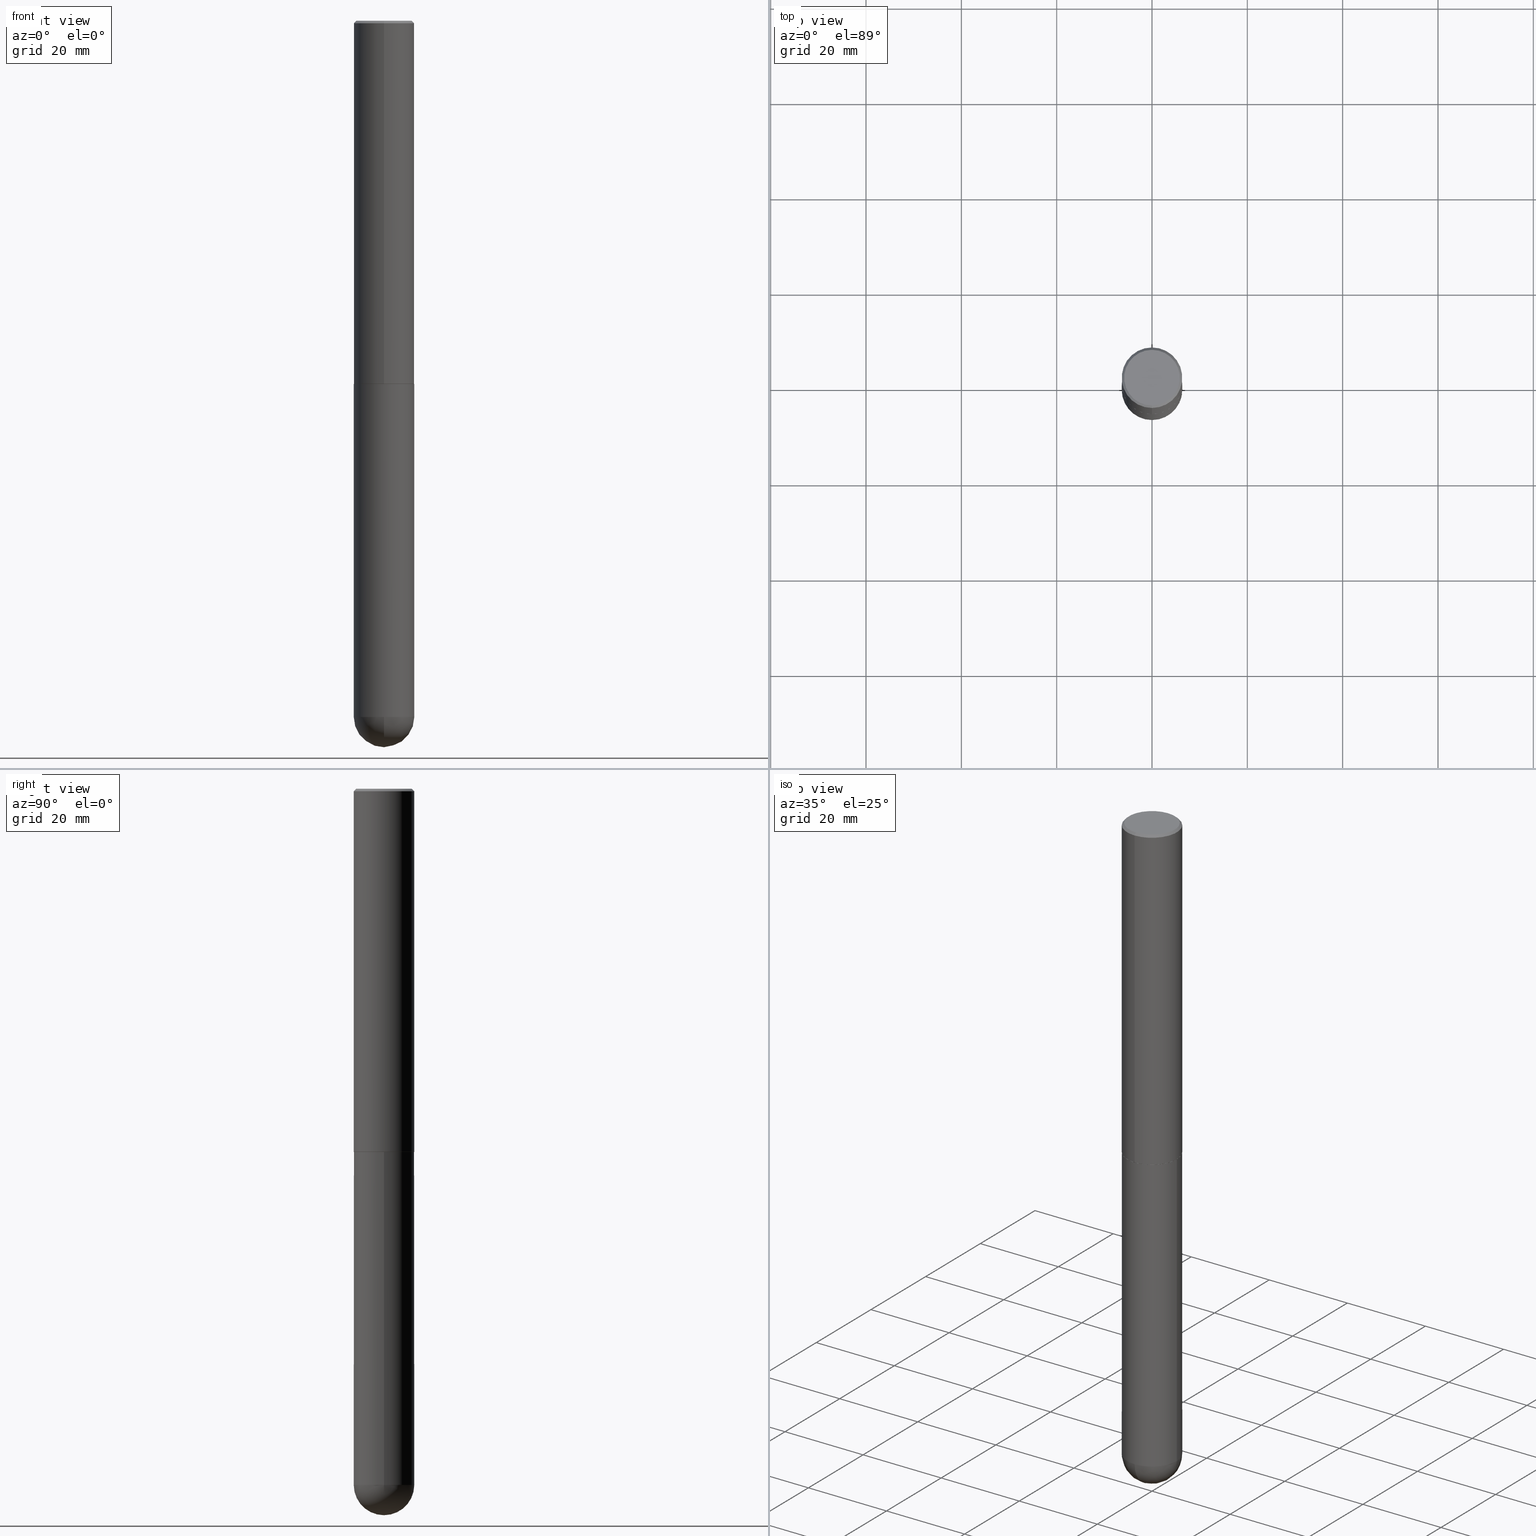
[diagram: canonical four-view strip — front | top / right | iso, engineering-drawing reading convention]
A machine part, canonical four-view strip (front | top / right | iso — engineering-drawing reading convention). The complete STEP part file that produces these views, byte-faithful:
ISO-10303-21;
HEADER;
FILE_DESCRIPTION (( 'STEP AP203' ),
    '1' );
FILE_NAME ('33132.STEP',
    '2024-02-21T17:54:42',
    ( '' ),
    ( '' ),
    'SwSTEP 2.0',
    'SolidWorks 2023',
    '' );
FILE_SCHEMA (( 'CONFIG_CONTROL_DESIGN' ));
ENDSEC;

DATA;
#1 = ORIENTED_EDGE ( 'NONE', *, *, #58, .F. ) ;
#2 = AXIS2_PLACEMENT_3D ( 'NONE', #291, #148, #118 ) ;
#3 = COORDINATED_UNIVERSAL_TIME_OFFSET ( 5, 0, .BEHIND. ) ;
#4 = CARTESIAN_POINT ( 'NONE',  ( -0.2500000000000000000, 1.776356839400250465E-15, -1.229733772563726445E-29 ) ) ;
#5 = ADVANCED_FACE ( 'NONE', ( #50 ), #303, .T. ) ;
#6 = CARTESIAN_POINT ( 'NONE',  ( 1.745740669421639647E-15, 0.2499999999999895084, -3.000000000000000888 ) ) ;
#7 = ORIENTED_EDGE ( 'NONE', *, *, #243, .T. ) ;
#8 = DIRECTION ( 'NONE',  ( -1.000000000000000000, 7.105427357601001070E-15, -4.926315508542082329E-29 ) ) ;
#9 = VERTEX_POINT ( 'NONE', #362 ) ;
#10 = CARTESIAN_POINT ( 'NONE',  ( 1.373032585765065255E-28, -2.055020006648814124E-14, -5.750000000000000888 ) ) ;
#11 = DIRECTION ( 'NONE',  ( -6.982962677686265922E-15, -1.000000000000000000, 4.370956789862815627E-15 ) ) ;
#12 = ORIENTED_EDGE ( 'NONE', *, *, #248, .T. ) ;
#13 = PERSON_AND_ORGANIZATION_ROLE ( 'design_owner' ) ;
#14 = VECTOR ( 'NONE', #140, 39.37007874015748143 ) ;
#15 = DIRECTION ( 'NONE',  ( 1.000000000000000000, -6.982962677686262766E-15, 0.000000000000000000 ) ) ;
#16 = DIRECTION ( 'NONE',  ( -2.445046103182867255E-29, 3.492086673601156067E-15, 1.000000000000000000 ) ) ;
#17 = VERTEX_POINT ( 'NONE', #394 ) ;
#18 = APPLICATION_CONTEXT ( 'configuration controlled 3d designs of mechanical parts and assemblies' ) ;
#19 = EDGE_CURVE ( 'NONE', #382, #69, #173, .T. ) ;
#20 = AXIS2_PLACEMENT_3D ( 'NONE', #381, #39, #224 ) ;
#21 = FACE_OUTER_BOUND ( 'NONE', #308, .T. ) ;
#22 = CC_DESIGN_APPROVAL ( #212, ( #276 ) ) ;
#23 = CARTESIAN_POINT ( 'NONE',  ( -1.738757706743806905E-15, -0.2490000000000104907, -2.999999999999999112 ) ) ;
#24 = SPHERICAL_SURFACE ( 'NONE', #60, 0.2500000000000006661 ) ;
#25 = EDGE_CURVE ( 'NONE', #73, #35, #124, .T. ) ;
#26 = VECTOR ( 'NONE', #48, 39.37007874015748143 ) ;
#27 =( GEOMETRIC_REPRESENTATION_CONTEXT ( 3 ) GLOBAL_UNCERTAINTY_ASSIGNED_CONTEXT ( ( #95 ) ) GLOBAL_UNIT_ASSIGNED_CONTEXT ( ( #46, #361, #217 ) ) REPRESENTATION_CONTEXT ( 'NONE', 'WORKASPACE' ) );
#28 = CARTESIAN_POINT ( 'NONE',  ( 4.890092206365748558E-31, -6.984173347202331460E-17, -0.02000000000000005593 ) ) ;
#29 = DATE_AND_TIME ( #335, #202 ) ;
#30 = CARTESIAN_POINT ( 'NONE',  ( 0.000000000000000000, 0.000000000000000000, 0.000000000000000000 ) ) ;
#31 = EDGE_CURVE ( 'NONE', #228, #195, #86, .T. ) ;
#32 = CLOSED_SHELL ( 'NONE', ( #376, #110, #313, #5, #149, #192, #223, #199 ) ) ;
#33 = AXIS2_PLACEMENT_3D ( 'NONE', #164, #8, #133 ) ;
#34 = ORIENTED_EDGE ( 'NONE', *, *, #257, .F. ) ;
#35 = VERTEX_POINT ( 'NONE', #400 ) ;
#36 = CIRCLE ( 'NONE', #219, 0.2500000000000000000 ) ;
#37 = CARTESIAN_POINT ( 'NONE',  ( 2.953248465557020919E-44, -4.217916217195114840E-30, -1.207849807704073908E-15 ) ) ;
#38 = ORIENTED_EDGE ( 'NONE', *, *, #301, .F. ) ;
#39 = DIRECTION ( 'NONE',  ( 2.445046103182866975E-29, -3.492086673601156067E-15, -1.000000000000000000 ) ) ;
#40 = ORIENTED_EDGE ( 'NONE', *, *, #331, .T. ) ;
#41 = DIRECTION ( 'NONE',  ( 6.982962677686266711E-15, 1.000000000000000000, 0.000000000000000000 ) ) ;
#42 = ORIENTED_EDGE ( 'NONE', *, *, #243, .F. ) ;
#43 = EDGE_CURVE ( 'NONE', #184, #383, #359, .T. ) ;
#44 = CIRCLE ( 'NONE', #49, 0.2489999999999999991 ) ;
#45 = FACE_OUTER_BOUND ( 'NONE', #99, .T. ) ;
#46 =( CONVERSION_BASED_UNIT ( 'INCH', #138 ) LENGTH_UNIT ( ) NAMED_UNIT ( #384 ) );
#47 = ORIENTED_EDGE ( 'NONE', *, *, #31, .T. ) ;
#48 = DIRECTION ( 'NONE',  ( -2.445468806185136877E-29, 3.491481338843145188E-15, 1.000000000000000000 ) ) ;
#49 = AXIS2_PLACEMENT_3D ( 'NONE', #393, #198, #306 ) ;
#50 = FACE_OUTER_BOUND ( 'NONE', #318, .T. ) ;
#51 = DIRECTION ( 'NONE',  ( -2.445046103182867255E-29, 3.492086673601156067E-15, 1.000000000000000000 ) ) ;
#52 = CALENDAR_DATE ( 2024, 21, 2 ) ;
#53 = DIRECTION ( 'NONE',  ( -4.937700262165896205E-15, -0.7071067811867381980, 0.7071067811863568364 ) ) ;
#54 = PERSON_AND_ORGANIZATION ( #320, #105 ) ;
#55 = CIRCLE ( 'NONE', #229, 0.2499999999999999167 ) ;
#56 = DIRECTION ( 'NONE',  ( -2.445046103182867255E-29, 3.492086673601156067E-15, 1.000000000000000000 ) ) ;
#57 = APPROVAL_STATUS ( 'not_yet_approved' ) ;
#58 = EDGE_CURVE ( 'NONE', #200, #228, #83, .T. ) ;
#59 = ORIENTED_EDGE ( 'NONE', *, *, #154, .T. ) ;
#60 = AXIS2_PLACEMENT_3D ( 'NONE', #372, #215, #404 ) ;
#61 = ORIENTED_EDGE ( 'NONE', *, *, #292, .T. ) ;
#62 = CC_DESIGN_DATE_AND_TIME_ASSIGNMENT ( #29, #375, ( #276 ) ) ;
#63 = DIRECTION ( 'NONE',  ( -1.000000000000000000, 6.982962677686265922E-15, -4.883557194083112340E-29 ) ) ;
#64 = DIRECTION ( 'NONE',  ( -2.445046103182866975E-29, 3.492086673601156067E-15, 1.000000000000000000 ) ) ;
#65 = ORIENTED_EDGE ( 'NONE', *, *, #43, .T. ) ;
#66 = DIRECTION ( 'NONE',  ( 1.000000000000000000, -6.982962677686265922E-15, 4.883557194083112340E-29 ) ) ;
#67 = FACE_OUTER_BOUND ( 'NONE', #346, .T. ) ;
#68 = PRODUCT_DEFINITION_SHAPE ( 'NONE', 'NONE',  #276 ) ;
#69 = VERTEX_POINT ( 'NONE', #364 ) ;
#70 = AXIS2_PLACEMENT_3D ( 'NONE', #304, #227, #310 ) ;
#71 = DATE_AND_TIME ( #385, #114 ) ;
#72 = CC_DESIGN_APPROVAL ( #317, ( #409 ) ) ;
#73 = VERTEX_POINT ( 'NONE', #326 ) ;
#74 = APPROVAL_DATE_TIME ( #392, #265 ) ;
#75 = ORIENTED_EDGE ( 'NONE', *, *, #248, .F. ) ;
#76 = PERSON_AND_ORGANIZATION ( #320, #105 ) ;
#77 = DIRECTION ( 'NONE',  ( -2.445468806185136597E-29, 3.491481338843145583E-15, 1.000000000000000000 ) ) ;
#78 = DIRECTION ( 'NONE',  ( -2.445046103182867255E-29, 3.492086673601156067E-15, 1.000000000000000000 ) ) ;
#79 = SPHERICAL_SURFACE ( 'NONE', #322, 0.2500000000000006661 ) ;
#80 = EDGE_CURVE ( 'NONE', #195, #228, #287, .T. ) ;
#81 = CARTESIAN_POINT ( 'NONE',  ( 1.745740669421707884E-15, 0.2499999999999800160, -5.750000000000001776 ) ) ;
#82 = CARTESIAN_POINT ( 'NONE',  ( 4.890092206365748558E-31, -6.984173347202331460E-17, -0.02000000000000005593 ) ) ;
#83 = LINE ( 'NONE', #205, #26 ) ;
#84 = DIRECTION ( 'NONE',  ( 6.982962677686265922E-15, 1.000000000000000000, -3.500180241882338444E-15 ) ) ;
#85 = VECTOR ( 'NONE', #146, 39.37007874015748143 ) ;
#86 = CIRCLE ( 'NONE', #145, 0.2500000000000000000 ) ;
#87 = CYLINDRICAL_SURFACE ( 'NONE', #187, 0.2500000000000001110 ) ;
#88 = CARTESIAN_POINT ( 'NONE',  ( -1.738757706743806905E-15, -0.2490000000000104907, -2.999999999999999112 ) ) ;
#89 = VERTEX_POINT ( 'NONE', #366 ) ;
#90 = DATE_AND_TIME ( #371, #374 ) ;
#91 = PRODUCT_RELATED_PRODUCT_CATEGORY ( 'detail', '', ( #193 ) ) ;
#92 = DIRECTION ( 'NONE',  ( -2.445046103182867255E-29, 3.492086673601156067E-15, 1.000000000000000000 ) ) ;
#93 = ORIENTED_EDGE ( 'NONE', *, *, #58, .T. ) ;
#94 = AXIS2_PLACEMENT_3D ( 'NONE', #37, #246, #283 ) ;
#95 = UNCERTAINTY_MEASURE_WITH_UNIT (LENGTH_MEASURE( 1.000000000000000082E-05 ), #46, 'distance_accuracy_value', 'NONE');
#96 = CARTESIAN_POINT ( 'NONE',  ( 0.2500000000000000000, -1.702097152686033033E-14, -5.750000000000000888 ) ) ;
#97 = ORIENTED_EDGE ( 'NONE', *, *, #261, .F. ) ;
#98 = FACE_OUTER_BOUND ( 'NONE', #341, .T. ) ;
#99 = EDGE_LOOP ( 'NONE', ( #222, #247, #188, #34 ) ) ;
#100 = DIRECTION ( 'NONE',  ( 6.982962677686265922E-15, 1.000000000000000000, -4.370956789862809317E-15 ) ) ;
#101 = PLANE ( 'NONE',  #20 ) ;
#102 = ORIENTED_EDGE ( 'NONE', *, *, #412, .T. ) ;
#103 = EDGE_CURVE ( 'NONE', #17, #69, #373, .T. ) ;
#104 = CONICAL_SURFACE ( 'NONE', #240, 0.2489999999999999991, 0.7853981633977213939 ) ;
#105 = ORGANIZATION ( 'UNSPECIFIED', 'UNSPECIFIED', '' ) ;
#106 = DIRECTION ( 'NONE',  ( -2.445046103182867255E-29, 3.492086673601156067E-15, 1.000000000000000000 ) ) ;
#107 = ORIENTED_EDGE ( 'NONE', *, *, #125, .T. ) ;
#108 = CARTESIAN_POINT ( 'NONE',  ( 1.745740669421566480E-15, 0.2499999999999998612, -0.02000000000000093023 ) ) ;
#109 = DIRECTION ( 'NONE',  ( 6.982962677686265922E-15, 1.000000000000000000, -3.500180241882338444E-15 ) ) ;
#110 = ADVANCED_FACE ( 'NONE', ( #21 ), #87, .T. ) ;
#111 = DESIGN_CONTEXT ( 'detailed design', #396, 'design' ) ;
#112 = CARTESIAN_POINT ( 'NONE',  ( -0.2500000000000000000, -1.349887401803851318E-14, -3.000000000000000444 ) ) ;
#113 = AXIS2_PLACEMENT_3D ( 'NONE', #298, #234, #236 ) ;
#114 = LOCAL_TIME ( 12, 54, 42.00000000000000000, #3 ) ;
#115 = CARTESIAN_POINT ( 'NONE',  ( 1.769251412042722426E-15, 0.2489999999999895075, -3.000000000000001332 ) ) ;
#116 = DIRECTION ( 'NONE',  ( -6.982962677686266711E-15, -1.000000000000000000, 3.492086673601156067E-15 ) ) ;
#117 = DIRECTION ( 'NONE',  ( 2.445046103182867255E-29, -3.492086673601156067E-15, -1.000000000000000000 ) ) ;
#118 = DIRECTION ( 'NONE',  ( -6.982962677686266711E-15, -1.000000000000000000, 3.492086673601156067E-15 ) ) ;
#119 = DIRECTION ( 'NONE',  ( 1.000000000000000000, -6.982962677686262766E-15, 0.000000000000000000 ) ) ;
#120 = AXIS2_PLACEMENT_3D ( 'NONE', #28, #117, #84 ) ;
#121 = PERSON_AND_ORGANIZATION ( #320, #105 ) ;
#122 = EDGE_CURVE ( 'NONE', #200, #277, #299, .T. ) ;
#123 = PERSON_AND_ORGANIZATION_ROLE ( 'creator' ) ;
#124 = CIRCLE ( 'NONE', #311, 0.2499999999999999167 ) ;
#125 = EDGE_CURVE ( 'NONE', #277, #253, #367, .T. ) ;
#126 = ORIENTED_EDGE ( 'NONE', *, *, #331, .F. ) ;
#127 = ORIENTED_EDGE ( 'NONE', *, *, #103, .T. ) ;
#128 = CIRCLE ( 'NONE', #33, 0.2500000000000006661 ) ;
#129 = VECTOR ( 'NONE', #407, 39.37007874015748143 ) ;
#130 = ORIENTED_EDGE ( 'NONE', *, *, #25, .T. ) ;
#131 = APPROVAL_ROLE ( '' ) ;
#132 = DIRECTION ( 'NONE',  ( -6.982962677686265133E-15, -1.000000000000000000, 4.388510833195603583E-15 ) ) ;
#133 = DIRECTION ( 'NONE',  ( -7.105427357601001859E-15, -1.000000000000000000, 0.000000000000000000 ) ) ;
#134 = ORIENTED_EDGE ( 'NONE', *, *, #268, .F. ) ;
#135 = LINE ( 'NONE', #108, #379 ) ;
#136 = CARTESIAN_POINT ( 'NONE',  ( -1.715124499442881707E-15, -0.2500000000000000000, -0.01999999999999918163 ) ) ;
#137 = VERTEX_POINT ( 'NONE', #23 ) ;
#138 = LENGTH_MEASURE_WITH_UNIT ( LENGTH_MEASURE( 0.02539999999999999897 ), #411 );
#139 = AXIS2_PLACEMENT_3D ( 'NONE', #82, #235, #109 ) ;
#140 = DIRECTION ( 'NONE',  ( -2.445046103182867535E-29, 3.492086673601156067E-15, 1.000000000000000000 ) ) ;
#141 = ADVANCED_BREP_SHAPE_REPRESENTATION ( '33132', ( #363, #226, #151 ), #27 ) ;
#142 = CC_DESIGN_PERSON_AND_ORGANIZATION_ASSIGNMENT ( #213, #123, ( #276 ) ) ;
#143 = DIRECTION ( 'NONE',  ( -2.445468806185136597E-29, 3.491481338843145583E-15, 1.000000000000000000 ) ) ;
#144 = CARTESIAN_POINT ( 'NONE',  ( 7.336406418555409790E-29, -1.047444401652943635E-14, -3.000000000000000444 ) ) ;
#145 = AXIS2_PLACEMENT_3D ( 'NONE', #144, #262, #325 ) ;
#146 = DIRECTION ( 'NONE',  ( 5.024295867789434219E-15, 0.7071067811867430830, 0.7071067811863519514 ) ) ;
#147 = FACE_OUTER_BOUND ( 'NONE', #168, .T. ) ;
#148 = DIRECTION ( 'NONE',  ( -2.445046103182867255E-29, 3.492086673601156067E-15, 1.000000000000000000 ) ) ;
#149 = ADVANCED_FACE ( 'NONE', ( #210 ), #179, .T. ) ;
#150 = LINE ( 'NONE', #297, #256 ) ;
#151 = AXIS2_PLACEMENT_3D ( 'NONE', #30, #155, #274 ) ;
#152 = PERSON_AND_ORGANIZATION_ROLE ( 'classification_officer' ) ;
#153 = CYLINDRICAL_SURFACE ( 'NONE', #270, 0.2500000000000000000 ) ;
#154 = EDGE_CURVE ( 'NONE', #17, #35, #238, .T. ) ;
#155 = DIRECTION ( 'NONE',  ( 0.000000000000000000, 0.000000000000000000, 1.000000000000000000 ) ) ;
#156 = APPROVAL_DATE_TIME ( #71, #212 ) ;
#157 = ORIENTED_EDGE ( 'NONE', *, *, #365, .F. ) ;
#158 = ORIENTED_EDGE ( 'NONE', *, *, #261, .T. ) ;
#159 = COORDINATED_UNIVERSAL_TIME_OFFSET ( 5, 0, .BEHIND. ) ;
#160 = CARTESIAN_POINT ( 'NONE',  ( 1.675911042644707718E-15, 0.2300000000000011202, -2.011029742632343554E-15 ) ) ;
#161 = ORIENTED_EDGE ( 'NONE', *, *, #122, .F. ) ;
#162 = AXIS2_PLACEMENT_3D ( 'NONE', #386, #92, #11 ) ;
#163 = LOCAL_TIME ( 12, 54, 42.00000000000000000, #159 ) ;
#164 = CARTESIAN_POINT ( 'NONE',  ( 1.373032585765065255E-28, -2.055020006648814124E-14, -5.750000000000000888 ) ) ;
#165 = ORIENTED_EDGE ( 'NONE', *, *, #268, .T. ) ;
#166 = CARTESIAN_POINT ( 'NONE',  ( 7.335138309548600084E-29, -1.047626002080346859E-14, -2.999999999999999556 ) ) ;
#167 = ORIENTED_EDGE ( 'NONE', *, *, #103, .F. ) ;
#168 = EDGE_LOOP ( 'NONE', ( #267, #158, #40, #357 ) ) ;
#169 = CALENDAR_DATE ( 2024, 21, 2 ) ;
#170 = CC_DESIGN_PERSON_AND_ORGANIZATION_ASSIGNMENT ( #355, #13, ( #193 ) ) ;
#171 = CIRCLE ( 'NONE', #94, 0.2300000000000011202 ) ;
#172 = CARTESIAN_POINT ( 'NONE',  ( 7.335138309548602326E-29, -1.047626002080347017E-14, -3.000000000000000444 ) ) ;
#173 = LINE ( 'NONE', #115, #85 ) ;
#174 = CARTESIAN_POINT ( 'NONE',  ( 7.332693263445419070E-29, -1.047276793412986863E-14, -2.999000000000000554 ) ) ;
#175 = EDGE_CURVE ( 'NONE', #89, #200, #353, .T. ) ;
#176 = DIRECTION ( 'NONE',  ( -6.982962677686265922E-15, -1.000000000000000000, 3.500180241882338444E-15 ) ) ;
#177 = PERSON_AND_ORGANIZATION ( #320, #105 ) ;
#178 = DIRECTION ( 'NONE',  ( -2.445468806185136597E-29, 3.491481338843145583E-15, 1.000000000000000000 ) ) ;
#179 = CYLINDRICAL_SURFACE ( 'NONE', #2, 0.2500000000000001110 ) ;
#180 = DATE_TIME_ROLE ( 'classification_date' ) ;
#181 = SECURITY_CLASSIFICATION_LEVEL ( 'unclassified' ) ;
#182 = PERSON_AND_ORGANIZATION_ROLE ( 'creator' ) ;
#183 = FACE_OUTER_BOUND ( 'NONE', #231, .T. ) ;
#184 = VERTEX_POINT ( 'NONE', #323 ) ;
#185 = APPROVAL_ROLE ( '' ) ;
#186 = ORIENTED_EDGE ( 'NONE', *, *, #154, .F. ) ;
#187 = AXIS2_PLACEMENT_3D ( 'NONE', #264, #401, #116 ) ;
#188 = ORIENTED_EDGE ( 'NONE', *, *, #301, .T. ) ;
#189 = CARTESIAN_POINT ( 'NONE',  ( 1.772804125721524114E-15, 0.2489999999999895075, -3.000000000000001332 ) ) ;
#190 = PLANE ( 'NONE',  #408 ) ;
#191 = EDGE_LOOP ( 'NONE', ( #387, #391, #59, #348 ) ) ;
#192 = ADVANCED_FACE ( 'NONE', ( #45 ), #239, .T. ) ;
#193 = PRODUCT ( '33132', '33132', '', ( #344 ) ) ;
#194 = CYLINDRICAL_SURFACE ( 'NONE', #70, 0.2500000000000000000 ) ;
#195 = VERTEX_POINT ( 'NONE', #112 ) ;
#196 = AXIS2_PLACEMENT_3D ( 'NONE', #172, #16, #260 ) ;
#197 = ORIENTED_EDGE ( 'NONE', *, *, #405, .T. ) ;
#198 = DIRECTION ( 'NONE',  ( -2.445046103182867255E-29, 3.492086673601156067E-15, 1.000000000000000000 ) ) ;
#199 = ADVANCED_FACE ( 'NONE', ( #360 ), #101, .F. ) ;
#200 = VERTEX_POINT ( 'NONE', #96 ) ;
#201 = DIRECTION ( 'NONE',  ( -6.982962677686265922E-15, -1.000000000000000000, 3.492086673601156067E-15 ) ) ;
#202 = LOCAL_TIME ( 12, 54, 42.00000000000000000, #244 ) ;
#203 = CARTESIAN_POINT ( 'NONE',  ( 7.336406418555409790E-29, -1.047444401652943635E-14, -3.000000000000000444 ) ) ;
#204 = DIRECTION ( 'NONE',  ( -2.445046103182867255E-29, 3.492086673601156067E-15, 1.000000000000000000 ) ) ;
#205 = CARTESIAN_POINT ( 'NONE',  ( 0.2500000000000000000, -1.745740669421566678E-15, 1.219044193948983948E-29 ) ) ;
#206 = CARTESIAN_POINT ( 'NONE',  ( 1.406144563556453767E-28, -2.007601769834809252E-14, -5.750000000000000888 ) ) ;
#207 = PERSON_AND_ORGANIZATION_ROLE ( 'design_supplier' ) ;
#208 = AXIS2_PLACEMENT_3D ( 'NONE', #398, #204, #132 ) ;
#209 = CARTESIAN_POINT ( 'NONE',  ( 4.890092206365748558E-31, -6.984173347202331460E-17, -0.02000000000000005593 ) ) ;
#210 = FACE_OUTER_BOUND ( 'NONE', #191, .T. ) ;
#211 = COORDINATED_UNIVERSAL_TIME_OFFSET ( 5, 0, .BEHIND. ) ;
#212 = APPROVAL ( #321, 'UNSPECIFIED' ) ;
#213 = PERSON_AND_ORGANIZATION ( #320, #105 ) ;
#214 = PERSON_AND_ORGANIZATION ( #320, #105 ) ;
#215 = DIRECTION ( 'NONE',  ( -1.000000000000000000, 6.982962677686265922E-15, -4.883557194083112340E-29 ) ) ;
#216 = CIRCLE ( 'NONE', #380, 0.2500000000000006661 ) ;
#217 =( NAMED_UNIT ( * ) SI_UNIT ( $, .STERADIAN. ) SOLID_ANGLE_UNIT ( ) );
#218 = ADVANCED_FACE ( 'NONE', ( #221 ), #190, .F. ) ;
#219 = AXIS2_PLACEMENT_3D ( 'NONE', #340, #269, #119 ) ;
#220 = EDGE_LOOP ( 'NONE', ( #7, #65 ) ) ;
#221 = FACE_OUTER_BOUND ( 'NONE', #315, .T. ) ;
#222 = ORIENTED_EDGE ( 'NONE', *, *, #19, .F. ) ;
#223 = ADVANCED_FACE ( 'NONE', ( #98 ), #314, .F. ) ;
#224 = DIRECTION ( 'NONE',  ( 6.982962677686265922E-15, 1.000000000000000000, -3.492086673601156067E-15 ) ) ;
#225 = ORIENTED_EDGE ( 'NONE', *, *, #370, .T. ) ;
#226 = MANIFOLD_SOLID_BREP ( 'Body-Move/Copy2[2]', #32 ) ;
#227 = DIRECTION ( 'NONE',  ( -2.445468806185136597E-29, 3.491481338843145583E-15, 1.000000000000000000 ) ) ;
#228 = VERTEX_POINT ( 'NONE', #349 ) ;
#229 = AXIS2_PLACEMENT_3D ( 'NONE', #209, #56, #300 ) ;
#230 = DIRECTION ( 'NONE',  ( -6.982962677686265133E-15, -1.000000000000000000, 4.388510833195603583E-15 ) ) ;
#231 = EDGE_LOOP ( 'NONE', ( #302, #12, #255, #288 ) ) ;
#232 = CARTESIAN_POINT ( 'NONE',  ( 1.406144563556453767E-28, -2.007601769834809252E-14, -5.750000000000000888 ) ) ;
#233 = DIRECTION ( 'NONE',  ( -4.851104656540957964E-15, -0.7071067811865491270, -0.7071067811865459074 ) ) ;
#234 = DIRECTION ( 'NONE',  ( -2.445468806185136597E-29, 3.491481338843145583E-15, 1.000000000000000000 ) ) ;
#235 = DIRECTION ( 'NONE',  ( 2.445046103182867255E-29, -3.492086673601156067E-15, -1.000000000000000000 ) ) ;
#236 = DIRECTION ( 'NONE',  ( 1.000000000000000000, -6.982962677686262766E-15, 0.000000000000000000 ) ) ;
#237 = CC_DESIGN_DATE_AND_TIME_ASSIGNMENT ( #90, #180, ( #345 ) ) ;
#238 = LINE ( 'NONE', #332, #14 ) ;
#239 = CONICAL_SURFACE ( 'NONE', #196, 0.2489999999999999991, 0.7853981633977213939 ) ;
#240 = AXIS2_PLACEMENT_3D ( 'NONE', #252, #106, #230 ) ;
#241 = ADVANCED_FACE ( 'NONE', ( #67 ), #194, .T. ) ;
#242 = AXIS2_PLACEMENT_3D ( 'NONE', #203, #259, #324 ) ;
#243 = EDGE_CURVE ( 'NONE', #383, #184, #171, .T. ) ;
#244 = COORDINATED_UNIVERSAL_TIME_OFFSET ( 5, 0, .BEHIND. ) ;
#245 = APPLICATION_PROTOCOL_DEFINITION ( 'international standard', 'config_control_design', 1994, #18 ) ;
#246 = DIRECTION ( 'NONE',  ( -2.445046103182867255E-29, 3.492086673601156067E-15, 1.000000000000000000 ) ) ;
#247 = ORIENTED_EDGE ( 'NONE', *, *, #365, .T. ) ;
#248 = EDGE_CURVE ( 'NONE', #9, #89, #128, .T. ) ;
#249 = AXIS2_PLACEMENT_3D ( 'NONE', #174, #51, #294 ) ;
#250 = APPROVAL_PERSON_ORGANIZATION ( #76, #212, #279 ) ;
#251 = ORIENTED_EDGE ( 'NONE', *, *, #175, .F. ) ;
#252 = CARTESIAN_POINT ( 'NONE',  ( 7.335138309548602326E-29, -1.047626002080347017E-14, -3.000000000000000444 ) ) ;
#253 = VERTEX_POINT ( 'NONE', #377 ) ;
#254 = ORIENTED_EDGE ( 'NONE', *, *, #342, .T. ) ;
#255 = ORIENTED_EDGE ( 'NONE', *, *, #342, .F. ) ;
#256 = VECTOR ( 'NONE', #266, 39.37007874015748143 ) ;
#257 = EDGE_CURVE ( 'NONE', #69, #17, #275, .T. ) ;
#258 = APPLICATION_PROTOCOL_DEFINITION ( 'international standard', 'config_control_design', 1994, #396 ) ;
#259 = DIRECTION ( 'NONE',  ( -2.445468806185136597E-29, 3.491481338843145583E-15, 1.000000000000000000 ) ) ;
#260 = DIRECTION ( 'NONE',  ( -6.982962677686265133E-15, -1.000000000000000000, 4.388510833195603583E-15 ) ) ;
#261 = EDGE_CURVE ( 'NONE', #184, #35, #352, .T. ) ;
#262 = DIRECTION ( 'NONE',  ( -2.445468806185136597E-29, 3.491481338843145583E-15, 1.000000000000000000 ) ) ;
#263 = CONICAL_SURFACE ( 'NONE', #120, 0.2499999999999999167, 0.7853981633974471688 ) ;
#264 = CARTESIAN_POINT ( 'NONE',  ( 0.000000000000000000, 0.000000000000000000, 0.000000000000000000 ) ) ;
#265 = APPROVAL ( #289, 'UNSPECIFIED' ) ;
#266 = DIRECTION ( 'NONE',  ( -2.445046103182867535E-29, 3.492086673601156067E-15, 1.000000000000000000 ) ) ;
#267 = ORIENTED_EDGE ( 'NONE', *, *, #43, .F. ) ;
#268 = EDGE_CURVE ( 'NONE', #137, #382, #295, .T. ) ;
#269 = DIRECTION ( 'NONE',  ( -2.445468806185136597E-29, 3.491481338843145583E-15, 1.000000000000000000 ) ) ;
#270 = AXIS2_PLACEMENT_3D ( 'NONE', #273, #178, #406 ) ;
#271 = CC_DESIGN_PERSON_AND_ORGANIZATION_ASSIGNMENT ( #54, #182, ( #409 ) ) ;
#272 = LINE ( 'NONE', #88, #328 ) ;
#273 = CARTESIAN_POINT ( 'NONE',  ( 0.000000000000000000, 0.000000000000000000, 0.000000000000000000 ) ) ;
#274 = DIRECTION ( 'NONE',  ( 1.000000000000000000, 0.000000000000000000, 0.000000000000000000 ) ) ;
#275 = CIRCLE ( 'NONE', #162, 0.2500000000000003331 ) ;
#276 = PRODUCT_DEFINITION ( 'UNKNOWN', '', #409, #111 ) ;
#277 = VERTEX_POINT ( 'NONE', #81 ) ;
#278 = DATE_AND_TIME ( #52, #163 ) ;
#279 = APPROVAL_ROLE ( '' ) ;
#280 = LINE ( 'NONE', #4, #129 ) ;
#281 = ORIENTED_EDGE ( 'NONE', *, *, #412, .F. ) ;
#282 = DIRECTION ( 'NONE',  ( 4.937700262164541731E-15, 0.7071067811865442421, -0.7071067811865507924 ) ) ;
#283 = DIRECTION ( 'NONE',  ( -6.982962677686265922E-15, -1.000000000000000000, 3.492086673601156067E-15 ) ) ;
#284 = EDGE_LOOP ( 'NONE', ( #107, #102, #336, #1, #354 ) ) ;
#285 = ORIENTED_EDGE ( 'NONE', *, *, #80, .T. ) ;
#286 = ADVANCED_FACE ( 'NONE', ( #333 ), #24, .T. ) ;
#287 = CIRCLE ( 'NONE', #242, 0.2500000000000000000 ) ;
#288 = ORIENTED_EDGE ( 'NONE', *, *, #125, .F. ) ;
#289 = APPROVAL_STATUS ( 'not_yet_approved' ) ;
#290 = AXIS2_PLACEMENT_3D ( 'NONE', #206, #143, #15 ) ;
#291 = CARTESIAN_POINT ( 'NONE',  ( 0.000000000000000000, 0.000000000000000000, 0.000000000000000000 ) ) ;
#292 = EDGE_CURVE ( 'NONE', #69, #73, #150, .T. ) ;
#293 = DIRECTION ( 'NONE',  ( -2.445046103182867255E-29, 3.492086673601156067E-15, 1.000000000000000000 ) ) ;
#294 = DIRECTION ( 'NONE',  ( -6.982962677686265922E-15, -1.000000000000000000, 4.370956789862815627E-15 ) ) ;
#295 = CIRCLE ( 'NONE', #208, 0.2489999999999999991 ) ;
#296 = LOCAL_TIME ( 12, 54, 42.00000000000000000, #319 ) ;
#297 = CARTESIAN_POINT ( 'NONE',  ( 1.776356839400251254E-15, 0.2500000000000001110, -8.730216684002894111E-16 ) ) ;
#298 = CARTESIAN_POINT ( 'NONE',  ( 1.406144563556453767E-28, -2.007601769834809252E-14, -5.750000000000000888 ) ) ;
#299 = CIRCLE ( 'NONE', #290, 0.2500000000000000000 ) ;
#300 = DIRECTION ( 'NONE',  ( -6.982962677686265922E-15, -1.000000000000000000, 3.500180241882338444E-15 ) ) ;
#301 = EDGE_CURVE ( 'NONE', #137, #17, #272, .T. ) ;
#302 = ORIENTED_EDGE ( 'NONE', *, *, #405, .F. ) ;
#303 = CONICAL_SURFACE ( 'NONE', #139, 0.2499999999999999167, 0.7853981633974471688 ) ;
#304 = CARTESIAN_POINT ( 'NONE',  ( 0.000000000000000000, 0.000000000000000000, 0.000000000000000000 ) ) ;
#305 = EDGE_LOOP ( 'NONE', ( #165, #410, #167, #38 ) ) ;
#306 = DIRECTION ( 'NONE',  ( -6.982962677686265133E-15, -1.000000000000000000, 4.388510833195603583E-15 ) ) ;
#307 = DIRECTION ( 'NONE',  ( -6.982962677686265922E-15, -1.000000000000000000, 3.492086673601156067E-15 ) ) ;
#308 = EDGE_LOOP ( 'NONE', ( #127, #61, #126, #186 ) ) ;
#309 = SHAPE_DEFINITION_REPRESENTATION ( #68, #141 ) ;
#310 = DIRECTION ( 'NONE',  ( 1.000000000000000000, -6.982962677686266711E-15, 4.876176775795935793E-29 ) ) ;
#311 = AXIS2_PLACEMENT_3D ( 'NONE', #402, #293, #176 ) ;
#312 = ORIENTED_EDGE ( 'NONE', *, *, #175, .T. ) ;
#313 = ADVANCED_FACE ( 'NONE', ( #147 ), #263, .T. ) ;
#314 = PLANE ( 'NONE',  #403 ) ;
#315 = EDGE_LOOP ( 'NONE', ( #47, #285 ) ) ;
#316 = CARTESIAN_POINT ( 'NONE',  ( 1.373032585765065255E-28, -2.055020006648814124E-14, -5.750000000000000888 ) ) ;
#317 = APPROVAL ( #57, 'UNSPECIFIED' ) ;
#318 = EDGE_LOOP ( 'NONE', ( #97, #42, #225, #130 ) ) ;
#319 = COORDINATED_UNIVERSAL_TIME_OFFSET ( 5, 0, .BEHIND. ) ;
#320 = PERSON ( 'UNSPECIFIED', 'UNSPECIFIED', 'UNSPECIFIED', ('UNSPECIFIED'), ('UNSPECIFIED'), ('UNSPECIFIED') ) ;
#321 = APPROVAL_STATUS ( 'not_yet_approved' ) ;
#322 = AXIS2_PLACEMENT_3D ( 'NONE', #10, #63, #100 ) ;
#323 = CARTESIAN_POINT ( 'NONE',  ( -1.646519519465170912E-15, -0.2300000000000011202, -4.046698727758040146E-16 ) ) ;
#324 = DIRECTION ( 'NONE',  ( 1.000000000000000000, -6.982962677686262766E-15, 0.000000000000000000 ) ) ;
#325 = DIRECTION ( 'NONE',  ( 1.000000000000000000, -6.982962677686262766E-15, 0.000000000000000000 ) ) ;
#326 = CARTESIAN_POINT ( 'NONE',  ( 1.745740669421566480E-15, 0.2499999999999998612, -0.02000000000000093023 ) ) ;
#327 = CLOSED_SHELL ( 'NONE', ( #337, #351, #286, #218, #241 ) ) ;
#328 = VECTOR ( 'NONE', #53, 39.37007874015748143 ) ;
#329 = CC_DESIGN_SECURITY_CLASSIFICATION ( #345, ( #409 ) ) ;
#330 = FACE_OUTER_BOUND ( 'NONE', #284, .T. ) ;
#331 = EDGE_CURVE ( 'NONE', #35, #73, #55, .T. ) ;
#332 = CARTESIAN_POINT ( 'NONE',  ( -1.745740669421567467E-15, -0.2500000000000001110, 8.730216684002894111E-16 ) ) ;
#333 = FACE_OUTER_BOUND ( 'NONE', #378, .T. ) ;
#334 = APPROVAL_DATE_TIME ( #278, #317 ) ;
#335 = CALENDAR_DATE ( 2024, 21, 2 ) ;
#336 = ORIENTED_EDGE ( 'NONE', *, *, #31, .F. ) ;
#337 = ADVANCED_FACE ( 'NONE', ( #330 ), #153, .T. ) ;
#338 = AXIS2_PLACEMENT_3D ( 'NONE', #232, #77, #358 ) ;
#339 = APPROVAL_PERSON_ORGANIZATION ( #121, #317, #185 ) ;
#340 = CARTESIAN_POINT ( 'NONE',  ( 1.406144563556453767E-28, -2.007601769834809252E-14, -5.750000000000000888 ) ) ;
#341 = EDGE_LOOP ( 'NONE', ( #134, #157 ) ) ;
#342 = EDGE_CURVE ( 'NONE', #253, #89, #36, .T. ) ;
#343 = CC_DESIGN_APPROVAL ( #265, ( #345 ) ) ;
#344 = MECHANICAL_CONTEXT ( 'NONE', #18, 'mechanical' ) ;
#345 = SECURITY_CLASSIFICATION ( '', '', #181 ) ;
#346 = EDGE_LOOP ( 'NONE', ( #281, #254, #312, #93, #350 ) ) ;
#347 = DIRECTION ( 'NONE',  ( -1.000000000000000000, 6.982962677686265922E-15, -4.876176775795935793E-29 ) ) ;
#348 = ORIENTED_EDGE ( 'NONE', *, *, #25, .F. ) ;
#349 = CARTESIAN_POINT ( 'NONE',  ( 0.2500000000000000000, -1.222018468595100303E-14, -3.000000000000000444 ) ) ;
#350 = ORIENTED_EDGE ( 'NONE', *, *, #80, .F. ) ;
#351 = ADVANCED_FACE ( 'NONE', ( #183 ), #79, .T. ) ;
#352 = LINE ( 'NONE', #136, #399 ) ;
#353 = CIRCLE ( 'NONE', #338, 0.2500000000000000000 ) ;
#354 = ORIENTED_EDGE ( 'NONE', *, *, #122, .T. ) ;
#355 = PERSON_AND_ORGANIZATION ( #320, #105 ) ;
#356 = DIRECTION ( 'NONE',  ( 2.438088387897960049E-29, -3.491481338843145188E-15, -1.000000000000000000 ) ) ;
#357 = ORIENTED_EDGE ( 'NONE', *, *, #370, .F. ) ;
#358 = DIRECTION ( 'NONE',  ( 1.000000000000000000, -6.982962677686262766E-15, 0.000000000000000000 ) ) ;
#359 = CIRCLE ( 'NONE', #390, 0.2300000000000011202 ) ;
#360 = FACE_OUTER_BOUND ( 'NONE', #220, .T. ) ;
#361 =( NAMED_UNIT ( * ) PLANE_ANGLE_UNIT ( ) SI_UNIT ( $, .RADIAN. ) );
#362 = CARTESIAN_POINT ( 'NONE',  ( 1.435238263781167989E-28, -2.140776231620958900E-14, -6.000000000000001776 ) ) ;
#363 = MANIFOLD_SOLID_BREP ( 'Body-Move/Copy2[1]', #327 ) ;
#364 = CARTESIAN_POINT ( 'NONE',  ( 1.776356839400288724E-15, 0.2499999999999898415, -2.999000000000001442 ) ) ;
#365 = EDGE_CURVE ( 'NONE', #382, #137, #44, .T. ) ;
#366 = CARTESIAN_POINT ( 'NONE',  ( -1.776356839400113597E-15, -0.2500000000000206501, -5.750000000000000000 ) ) ;
#367 = CIRCLE ( 'NONE', #113, 0.2500000000000000000 ) ;
#368 = APPROVAL_PERSON_ORGANIZATION ( #214, #265, #131 ) ;
#369 = PERSON_AND_ORGANIZATION ( #320, #105 ) ;
#370 = EDGE_CURVE ( 'NONE', #383, #73, #135, .T. ) ;
#371 = CALENDAR_DATE ( 2024, 21, 2 ) ;
#372 = CARTESIAN_POINT ( 'NONE',  ( 1.373032585765065255E-28, -2.055020006648814124E-14, -5.750000000000000888 ) ) ;
#373 = CIRCLE ( 'NONE', #249, 0.2500000000000003331 ) ;
#374 = LOCAL_TIME ( 12, 54, 42.00000000000000000, #211 ) ;
#375 = DATE_TIME_ROLE ( 'creation_date' ) ;
#376 = ADVANCED_FACE ( 'NONE', ( #389 ), #104, .T. ) ;
#377 = CARTESIAN_POINT ( 'NONE',  ( -0.2500000000000000000, -1.349887401803851318E-14, -5.750000000000000888 ) ) ;
#378 = EDGE_LOOP ( 'NONE', ( #75, #197, #161, #251 ) ) ;
#379 = VECTOR ( 'NONE', #282, 39.37007874015748143 ) ;
#380 = AXIS2_PLACEMENT_3D ( 'NONE', #316, #66, #41 ) ;
#381 = CARTESIAN_POINT ( 'NONE',  ( 1.606081415867848956E-15, 0.2300000000000011202, -1.407104838780306896E-15 ) ) ;
#382 = VERTEX_POINT ( 'NONE', #189 ) ;
#383 = VERTEX_POINT ( 'NONE', #160 ) ;
#384 = DIMENSIONAL_EXPONENTS ( 1.000000000000000000, 0.000000000000000000, 0.000000000000000000, 0.000000000000000000, 0.000000000000000000, 0.000000000000000000, 0.000000000000000000 ) ;
#385 = CALENDAR_DATE ( 2024, 21, 2 ) ;
#386 = CARTESIAN_POINT ( 'NONE',  ( 7.332693263445419070E-29, -1.047276793412986863E-14, -2.999000000000000554 ) ) ;
#387 = ORIENTED_EDGE ( 'NONE', *, *, #292, .F. ) ;
#388 = CC_DESIGN_PERSON_AND_ORGANIZATION_ASSIGNMENT ( #369, #152, ( #345 ) ) ;
#389 = FACE_OUTER_BOUND ( 'NONE', #305, .T. ) ;
#390 = AXIS2_PLACEMENT_3D ( 'NONE', #397, #78, #201 ) ;
#391 = ORIENTED_EDGE ( 'NONE', *, *, #257, .T. ) ;
#392 = DATE_AND_TIME ( #169, #296 ) ;
#393 = CARTESIAN_POINT ( 'NONE',  ( 7.335138309548602326E-29, -1.047626002080347017E-14, -3.000000000000000444 ) ) ;
#394 = CARTESIAN_POINT ( 'NONE',  ( -1.745740669421495680E-15, -0.2500000000000108247, -2.998999999999999222 ) ) ;
#395 = CC_DESIGN_PERSON_AND_ORGANIZATION_ASSIGNMENT ( #177, #207, ( #409 ) ) ;
#396 = APPLICATION_CONTEXT ( 'configuration controlled 3d designs of mechanical parts and assemblies' ) ;
#397 = CARTESIAN_POINT ( 'NONE',  ( 2.953248465557020919E-44, -4.217916217195114840E-30, -1.207849807704073908E-15 ) ) ;
#398 = CARTESIAN_POINT ( 'NONE',  ( 7.335138309548602326E-29, -1.047626002080347017E-14, -3.000000000000000444 ) ) ;
#399 = VECTOR ( 'NONE', #233, 39.37007874015748143 ) ;
#400 = CARTESIAN_POINT ( 'NONE',  ( -1.715124499442881707E-15, -0.2500000000000000000, -0.01999999999999918163 ) ) ;
#401 = DIRECTION ( 'NONE',  ( -2.445046103182867255E-29, 3.492086673601156067E-15, 1.000000000000000000 ) ) ;
#402 = CARTESIAN_POINT ( 'NONE',  ( 4.890092206365748558E-31, -6.984173347202331460E-17, -0.02000000000000005593 ) ) ;
#403 = AXIS2_PLACEMENT_3D ( 'NONE', #166, #64, #307 ) ;
#404 = DIRECTION ( 'NONE',  ( 6.982962677686265922E-15, 1.000000000000000000, -4.370956789862809317E-15 ) ) ;
#405 = EDGE_CURVE ( 'NONE', #9, #277, #216, .T. ) ;
#406 = DIRECTION ( 'NONE',  ( 1.000000000000000000, -6.982962677686266711E-15, 4.876176775795935793E-29 ) ) ;
#407 = DIRECTION ( 'NONE',  ( -2.445468806185136877E-29, 3.491481338843145188E-15, 1.000000000000000000 ) ) ;
#408 = AXIS2_PLACEMENT_3D ( 'NONE', #6, #356, #347 ) ;
#409 = PRODUCT_DEFINITION_FORMATION_WITH_SPECIFIED_SOURCE ( 'ANY', '', #193, .NOT_KNOWN. ) ;
#410 = ORIENTED_EDGE ( 'NONE', *, *, #19, .T. ) ;
#411 =( LENGTH_UNIT ( ) NAMED_UNIT ( * ) SI_UNIT ( $, .METRE. ) );
#412 = EDGE_CURVE ( 'NONE', #253, #195, #280, .T. ) ;
ENDSEC;
END-ISO-10303-21;
